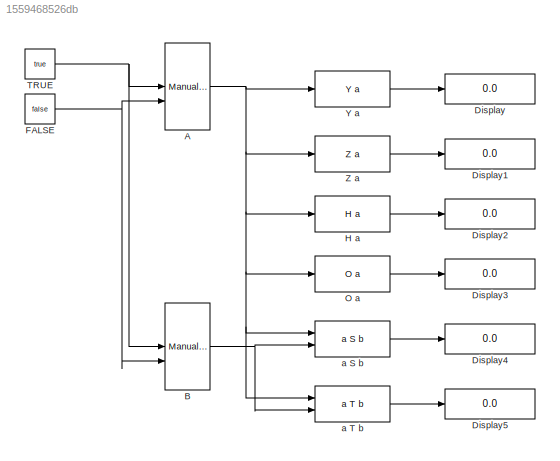
MODEL slx_1559468526db
KIND model
BLOCK [ManualSwitch] A
BLOCK [ManualSwitch] B
  CurrentSetting = 0
BLOCK [Display] Display
  Decimation = 1
  Ports = [1]
BLOCK [Display] Display1
  Decimation = 1
  Ports = [1]
BLOCK [Display] Display2
  Decimation = 1
  Ports = [1]
BLOCK [Display] Display3
  Decimation = 1
  Ports = [1]
BLOCK [Display] Display4
  Decimation = 1
  Ports = [1]
BLOCK [Display] Display5
  Decimation = 1
  Ports = [1]
BLOCK [Constant] FALSE
  Value = false
BLOCK [Reference] H a  REF=patterns_library/H a  (lib defined in slx_1b5033acf6a4)
  Ports = [1, 1]
  SourceBlock = patterns_library/H a
  SourceType = SubSystem
BLOCK [Reference] O a  REF=patterns_library/O a  (lib defined in slx_1b5033acf6a4)
  Ports = [1, 1]
  SourceBlock = patterns_library/O a
  SourceType = SubSystem
BLOCK [Constant] TRUE 
  Value = true
BLOCK [Reference] Y a  REF=patterns_library/Y a  (lib defined in slx_1b5033acf6a4)
  Ports = [1, 1]
  SourceBlock = patterns_library/Y a
  SourceType = SubSystem
BLOCK [Reference] Z a  REF=patterns_library/Z a  (lib defined in slx_1b5033acf6a4)
  Ports = [1, 1]
  SourceBlock = patterns_library/Z a
  SourceType = SubSystem
BLOCK [Reference] a S b  REF=patterns_library/a S b  (lib defined in slx_1b5033acf6a4)
  Ports = [2, 1]
  SourceBlock = patterns_library/a S b
  SourceType = SubSystem
BLOCK [Reference] a T b  REF=patterns_library/a T b  (lib defined in slx_1b5033acf6a4)
  Ports = [2, 1]
  SourceBlock = patterns_library/a T b
  SourceType = SubSystem
NET A:1 -> H a:1, O a:1, Y a:1, Z a:1, a S b:1, a T b:1
NET B:1 -> a S b:2, a T b:2
NET FALSE:1 -> A:2, B:2
LINE H a:1 -> Display2:1
LINE O a:1 -> Display3:1
NET TRUE :1 -> A:1, B:1
LINE Y a:1 -> Display:1
LINE Z a:1 -> Display1:1
LINE a S b:1 -> Display4:1
LINE a T b:1 -> Display5:1
note: NET lines group one-source signal fan-out (src -> all destinations, sorted); 1:1 wires keep LINE
